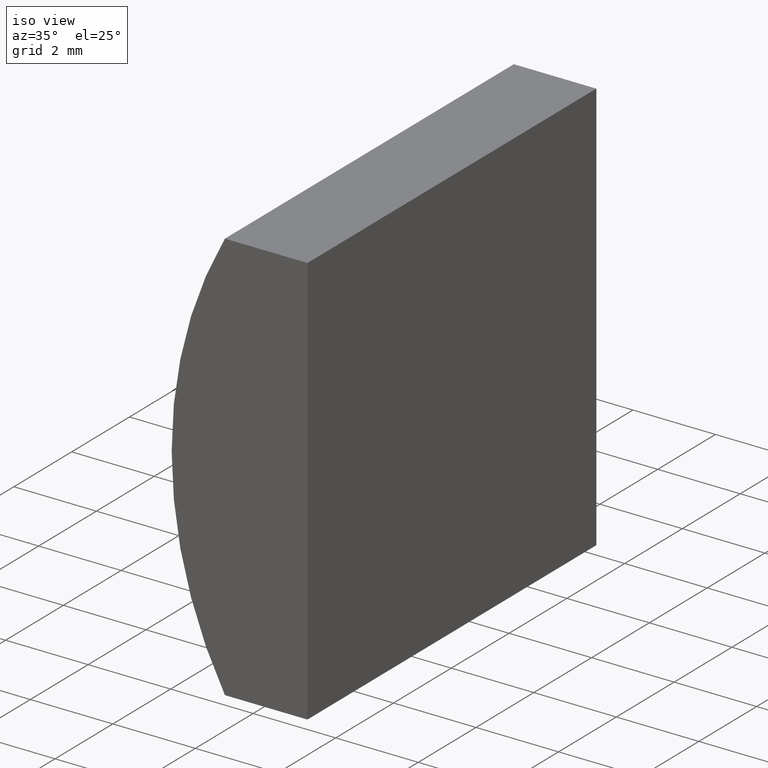
[diagram: clean part render]
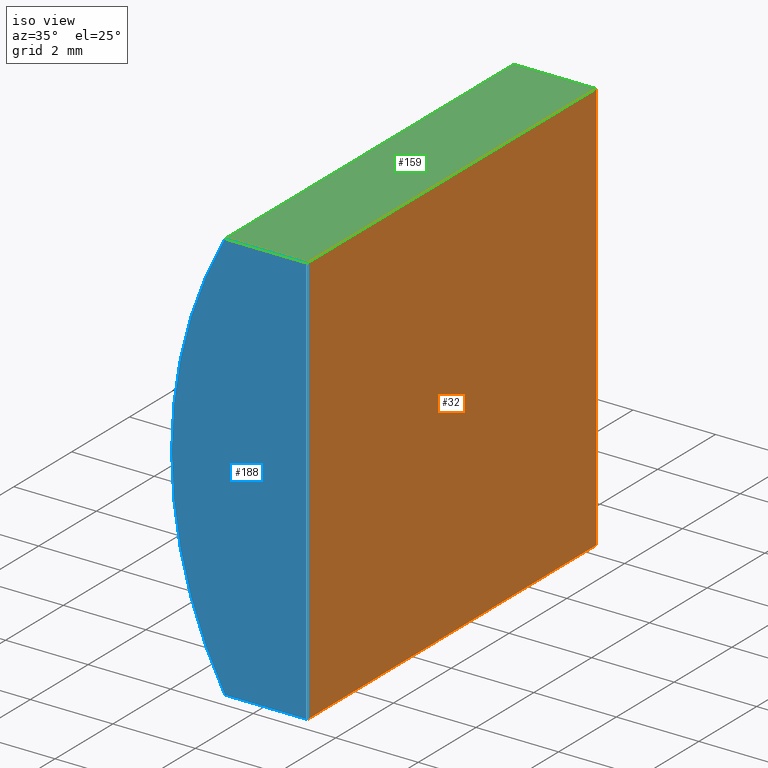
[diagram: same view with three faces highlighted in distinct colors, each labeled with its STEP entity id]
A machine part, iso view with three faces highlighted in distinct colors.
Their STEP definitions:

[orange] entity #32 — the highlighted planar face has unit normal (-1, 0, 0).
#1 = DIRECTION ( 'NONE',  ( -3.469446951953613700E-016, -0.0000000000000000000, -1.000000000000000000 ) ) ;
#14 = ORIENTED_EDGE ( 'NONE', *, *, #33, .F. ) ;
#25 = VERTEX_POINT ( 'NONE', #56 ) ;
#27 = AXIS2_PLACEMENT_3D ( 'NONE', #105, #171, #48 ) ;
#29 = LINE ( 'NONE', #141, #160 ) ;
#32 = ADVANCED_FACE ( 'NONE', ( #187 ), #93, .F. ) ;
#33 = EDGE_CURVE ( 'NONE', #127, #104, #57, .T. ) ;
#34 = VECTOR ( 'NONE', #116, 1000.000000000000000 ) ;
#36 = DIRECTION ( 'NONE',  ( -0.0000000000000000000, -1.000000000000000000, -0.0000000000000000000 ) ) ;
#40 = EDGE_CURVE ( 'NONE', #135, #25, #29, .T. ) ;
#48 = DIRECTION ( 'NONE',  ( 3.469446951953613700E-016, 0.0000000000000000000, 1.000000000000000000 ) ) ;
#51 = LINE ( 'NONE', #155, #186 ) ;
#56 = CARTESIAN_POINT ( 'NONE',  ( -2.684795665148739500, 0.0000000000000000000, -4.999999999999999100 ) ) ;
#57 = LINE ( 'NONE', #176, #34 ) ;
#70 = EDGE_CURVE ( 'NONE', #127, #135, #86, .T. ) ;
#81 = VECTOR ( 'NONE', #109, 1000.000000000000000 ) ;
#86 = LINE ( 'NONE', #158, #81 ) ;
#93 = PLANE ( 'NONE',  #27 ) ;
#104 = VERTEX_POINT ( 'NONE', #170 ) ;
#105 = CARTESIAN_POINT ( 'NONE',  ( -2.684795665148739500, 10.00000000000000000, -4.999999999999999100 ) ) ;
#109 = DIRECTION ( 'NONE',  ( -0.0000000000000000000, -1.000000000000000000, -0.0000000000000000000 ) ) ;
#116 = DIRECTION ( 'NONE',  ( -3.469446951953613700E-016, -0.0000000000000000000, -1.000000000000000000 ) ) ;
#118 = ORIENTED_EDGE ( 'NONE', *, *, #70, .T. ) ;
#126 = CARTESIAN_POINT ( 'NONE',  ( -2.684795665148735900, 10.00000000000000000, 5.000000000000002700 ) ) ;
#127 = VERTEX_POINT ( 'NONE', #126 ) ;
#135 = VERTEX_POINT ( 'NONE', #163 ) ;
#141 = CARTESIAN_POINT ( 'NONE',  ( -2.684795665148739500, 0.0000000000000000000, -4.999999999999999100 ) ) ;
#155 = CARTESIAN_POINT ( 'NONE',  ( -2.684795665148739500, 10.00000000000000000, -4.999999999999999100 ) ) ;
#158 = CARTESIAN_POINT ( 'NONE',  ( -2.684795665148735900, 10.00000000000000000, 5.000000000000002700 ) ) ;
#160 = VECTOR ( 'NONE', #1, 1000.000000000000000 ) ;
#163 = CARTESIAN_POINT ( 'NONE',  ( -2.684795665148735900, 0.0000000000000000000, 5.000000000000002700 ) ) ;
#170 = CARTESIAN_POINT ( 'NONE',  ( -2.684795665148739500, 10.00000000000000000, -4.999999999999999100 ) ) ;
#171 = DIRECTION ( 'NONE',  ( -1.000000000000000000, 0.0000000000000000000, 3.469446951953613700E-016 ) ) ;
#176 = CARTESIAN_POINT ( 'NONE',  ( -2.684795665148739500, 10.00000000000000000, -4.999999999999999100 ) ) ;
#177 = EDGE_CURVE ( 'NONE', #104, #25, #51, .T. ) ;
#182 = EDGE_LOOP ( 'NONE', ( #190, #192, #14, #118 ) ) ;
#186 = VECTOR ( 'NONE', #36, 1000.000000000000000 ) ;
#187 = FACE_OUTER_BOUND ( 'NONE', #182, .T. ) ;
#190 = ORIENTED_EDGE ( 'NONE', *, *, #40, .T. ) ;
#192 = ORIENTED_EDGE ( 'NONE', *, *, #177, .F. ) ;

[blue] entity #188 — the highlighted planar face has unit normal (0, 1, 0).
#1 = DIRECTION ( 'NONE',  ( -3.469446951953613700E-016, -0.0000000000000000000, -1.000000000000000000 ) ) ;
#7 = ORIENTED_EDGE ( 'NONE', *, *, #46, .F. ) ;
#23 = VECTOR ( 'NONE', #198, 1000.000000000000000 ) ;
#25 = VERTEX_POINT ( 'NONE', #56 ) ;
#29 = LINE ( 'NONE', #141, #160 ) ;
#30 = ORIENTED_EDGE ( 'NONE', *, *, #113, .F. ) ;
#40 = EDGE_CURVE ( 'NONE', #135, #25, #29, .T. ) ;
#42 = CARTESIAN_POINT ( 'NONE',  ( -4.684093204227755400, 0.0000000000000000000, -4.999999999999997300 ) ) ;
#46 = EDGE_CURVE ( 'NONE', #152, #135, #53, .T. ) ;
#49 = CARTESIAN_POINT ( 'NONE',  ( -4.684093204227751900, 0.0000000000000000000, 5.000000000000002700 ) ) ;
#52 = CARTESIAN_POINT ( 'NONE',  ( -4.684093204227751900, 0.0000000000000000000, 5.000000000000002700 ) ) ;
#53 = LINE ( 'NONE', #49, #23 ) ;
#56 = CARTESIAN_POINT ( 'NONE',  ( -2.684795665148739500, 0.0000000000000000000, -4.999999999999999100 ) ) ;
#66 = CARTESIAN_POINT ( 'NONE',  ( 4.355204334851265500, 0.0000000000000000000, 4.286263797015675000E-017 ) ) ;
#83 = AXIS2_PLACEMENT_3D ( 'NONE', #99, #133, #138 ) ;
#84 = EDGE_LOOP ( 'NONE', ( #196, #30, #146, #7 ) ) ;
#85 = EDGE_CURVE ( 'NONE', #108, #152, #172, .T. ) ;
#95 = DIRECTION ( 'NONE',  ( 0.0000000000000000000, -0.0000000000000000000, 1.000000000000000000 ) ) ;
#99 = CARTESIAN_POINT ( 'NONE',  ( 4.355204334851265500, 0.0000000000000000000, 4.286263797015675000E-017 ) ) ;
#101 = PLANE ( 'NONE',  #145 ) ;
#103 = LINE ( 'NONE', #42, #164 ) ;
#108 = VERTEX_POINT ( 'NONE', #184 ) ;
#113 = EDGE_CURVE ( 'NONE', #25, #108, #103, .T. ) ;
#119 = DIRECTION ( 'NONE',  ( 0.0000000000000000000, 1.000000000000000000, 0.0000000000000000000 ) ) ;
#121 = FACE_OUTER_BOUND ( 'NONE', #84, .T. ) ;
#124 = DIRECTION ( 'NONE',  ( -1.000000000000000000, -0.0000000000000000000, 8.676664888888492800E-016 ) ) ;
#133 = DIRECTION ( 'NONE',  ( 0.0000000000000000000, 1.000000000000000000, 0.0000000000000000000 ) ) ;
#135 = VERTEX_POINT ( 'NONE', #163 ) ;
#138 = DIRECTION ( 'NONE',  ( 0.0000000000000000000, 0.0000000000000000000, 1.000000000000000000 ) ) ;
#141 = CARTESIAN_POINT ( 'NONE',  ( -2.684795665148739500, 0.0000000000000000000, -4.999999999999999100 ) ) ;
#145 = AXIS2_PLACEMENT_3D ( 'NONE', #66, #119, #95 ) ;
#146 = ORIENTED_EDGE ( 'NONE', *, *, #40, .F. ) ;
#152 = VERTEX_POINT ( 'NONE', #52 ) ;
#160 = VECTOR ( 'NONE', #1, 1000.000000000000000 ) ;
#163 = CARTESIAN_POINT ( 'NONE',  ( -2.684795665148735900, 0.0000000000000000000, 5.000000000000002700 ) ) ;
#164 = VECTOR ( 'NONE', #124, 1000.000000000000000 ) ;
#172 = CIRCLE ( 'NONE', #83, 10.33000000000000000 ) ;
#184 = CARTESIAN_POINT ( 'NONE',  ( -4.684093204227755400, 0.0000000000000000000, -4.999999999999997300 ) ) ;
#188 = ADVANCED_FACE ( 'NONE', ( #121 ), #101, .F. ) ;
#196 = ORIENTED_EDGE ( 'NONE', *, *, #85, .F. ) ;
#198 = DIRECTION ( 'NONE',  ( 1.000000000000000000, 0.0000000000000000000, 0.0000000000000000000 ) ) ;

[green] entity #159 — the highlighted planar face has unit normal (0, 0, -1).
#6 = ORIENTED_EDGE ( 'NONE', *, *, #132, .F. ) ;
#12 = CARTESIAN_POINT ( 'NONE',  ( -4.684093204227751900, 10.00000000000000000, 5.000000000000002700 ) ) ;
#18 = CARTESIAN_POINT ( 'NONE',  ( -4.684093204227751900, 10.00000000000000000, 5.000000000000002700 ) ) ;
#19 = CARTESIAN_POINT ( 'NONE',  ( -4.684093204227751900, 10.00000000000000000, 5.000000000000002700 ) ) ;
#22 = VECTOR ( 'NONE', #74, 1000.000000000000000 ) ;
#23 = VECTOR ( 'NONE', #198, 1000.000000000000000 ) ;
#26 = LINE ( 'NONE', #115, #123 ) ;
#46 = EDGE_CURVE ( 'NONE', #152, #135, #53, .T. ) ;
#49 = CARTESIAN_POINT ( 'NONE',  ( -4.684093204227751900, 0.0000000000000000000, 5.000000000000002700 ) ) ;
#52 = CARTESIAN_POINT ( 'NONE',  ( -4.684093204227751900, 0.0000000000000000000, 5.000000000000002700 ) ) ;
#53 = LINE ( 'NONE', #49, #23 ) ;
#59 = ORIENTED_EDGE ( 'NONE', *, *, #46, .T. ) ;
#63 = PLANE ( 'NONE',  #185 ) ;
#70 = EDGE_CURVE ( 'NONE', #127, #135, #86, .T. ) ;
#74 = DIRECTION ( 'NONE',  ( -0.0000000000000000000, -1.000000000000000000, -0.0000000000000000000 ) ) ;
#78 = ORIENTED_EDGE ( 'NONE', *, *, #102, .T. ) ;
#81 = VECTOR ( 'NONE', #109, 1000.000000000000000 ) ;
#82 = FACE_OUTER_BOUND ( 'NONE', #134, .T. ) ;
#86 = LINE ( 'NONE', #158, #81 ) ;
#94 = ORIENTED_EDGE ( 'NONE', *, *, #70, .F. ) ;
#102 = EDGE_CURVE ( 'NONE', #180, #152, #173, .T. ) ;
#109 = DIRECTION ( 'NONE',  ( -0.0000000000000000000, -1.000000000000000000, -0.0000000000000000000 ) ) ;
#115 = CARTESIAN_POINT ( 'NONE',  ( -4.684093204227751900, 10.00000000000000000, 5.000000000000002700 ) ) ;
#123 = VECTOR ( 'NONE', #175, 1000.000000000000000 ) ;
#126 = CARTESIAN_POINT ( 'NONE',  ( -2.684795665148735900, 10.00000000000000000, 5.000000000000002700 ) ) ;
#127 = VERTEX_POINT ( 'NONE', #126 ) ;
#132 = EDGE_CURVE ( 'NONE', #180, #127, #26, .T. ) ;
#134 = EDGE_LOOP ( 'NONE', ( #59, #94, #6, #78 ) ) ;
#135 = VERTEX_POINT ( 'NONE', #163 ) ;
#144 = DIRECTION ( 'NONE',  ( 0.0000000000000000000, 0.0000000000000000000, -1.000000000000000000 ) ) ;
#152 = VERTEX_POINT ( 'NONE', #52 ) ;
#153 = DIRECTION ( 'NONE',  ( -1.000000000000000000, 0.0000000000000000000, -0.0000000000000000000 ) ) ;
#158 = CARTESIAN_POINT ( 'NONE',  ( -2.684795665148735900, 10.00000000000000000, 5.000000000000002700 ) ) ;
#159 = ADVANCED_FACE ( 'NONE', ( #82 ), #63, .F. ) ;
#163 = CARTESIAN_POINT ( 'NONE',  ( -2.684795665148735900, 0.0000000000000000000, 5.000000000000002700 ) ) ;
#173 = LINE ( 'NONE', #19, #22 ) ;
#175 = DIRECTION ( 'NONE',  ( 1.000000000000000000, 0.0000000000000000000, 0.0000000000000000000 ) ) ;
#180 = VERTEX_POINT ( 'NONE', #18 ) ;
#185 = AXIS2_PLACEMENT_3D ( 'NONE', #12, #144, #153 ) ;
#198 = DIRECTION ( 'NONE',  ( 1.000000000000000000, 0.0000000000000000000, 0.0000000000000000000 ) ) ;